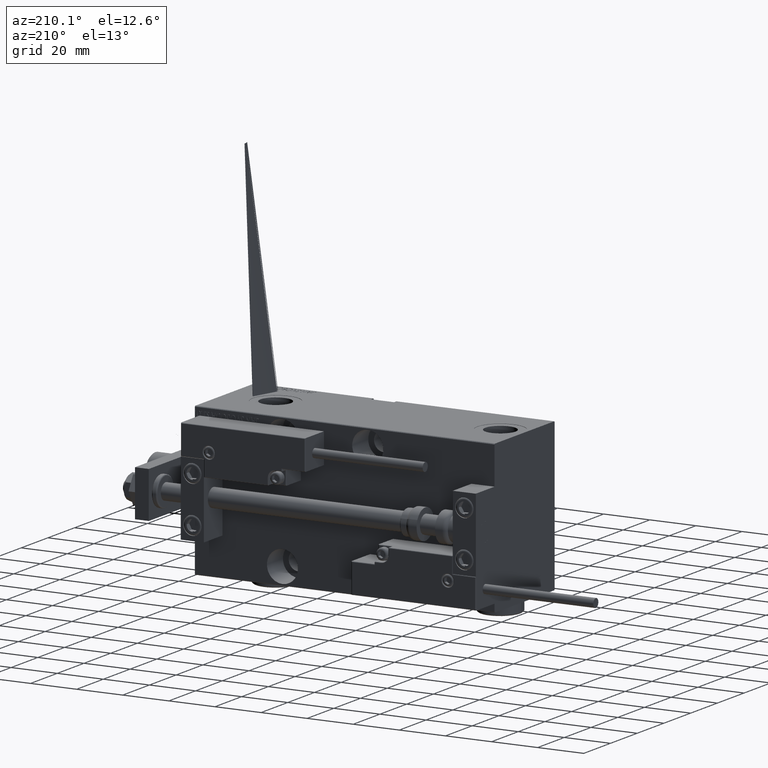
[diagram: clean part render]
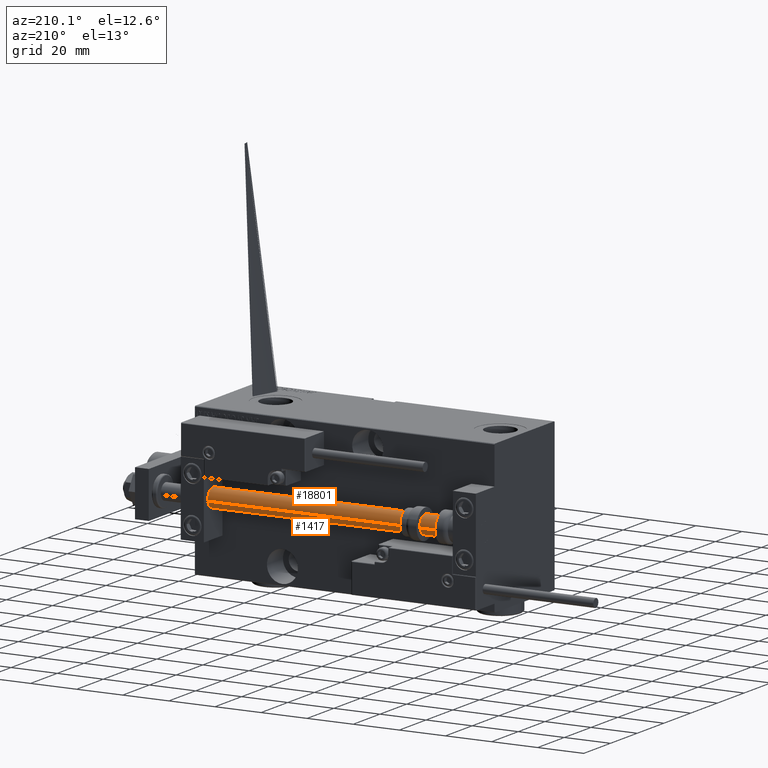
[diagram: same view with one multi-face feature highlighted, each face labeled with its STEP entity id]
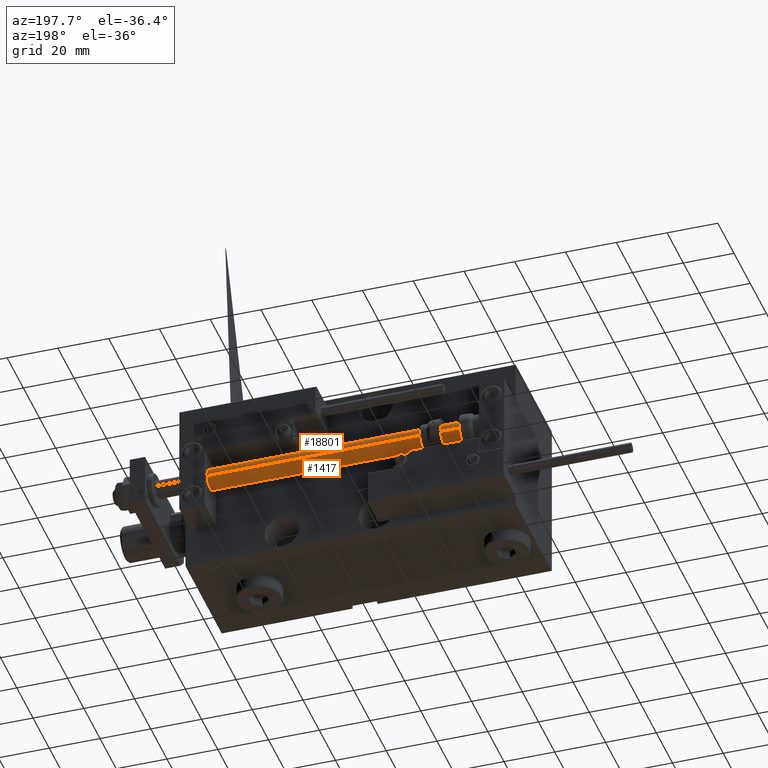
[diagram: same view with one multi-face feature highlighted, each face labeled with its STEP entity id]
A machine part, auxiliary view. The highlighted faces form ONE feature: a constant-radius fillet chain: 2 tangent blend faces with common blend radius 4 mm. The faces share edges in the B-rep.
A second angle (auxiliary view) of the same feature is appended — it is thin or edge-on in the first view.
Their STEP definitions:
[1] entity #18801 (Cylinder):
#2389 = EDGE_LOOP ( 'NONE', ( #43003, #35671, #18217, #14652 ) ) ;
#3469 = DIRECTION ( 'NONE',  ( -0.000000000000000000, -0.000000000000000000, -1.000000000000000000 ) ) ;
#3711 = DIRECTION ( 'NONE',  ( 1.000000000000000000, 0.000000000000000000, 0.000000000000000000 ) ) ;
#4170 = CARTESIAN_POINT ( 'NONE',  ( 4.000000000000000000, 4.898587196589412829E-16, 130.0000000000000000 ) ) ;
#7261 = VERTEX_POINT ( 'NONE', #17367 ) ;
#11428 = LINE ( 'NONE', #30423, #27233 ) ;
#12324 = CIRCLE ( 'NONE', #43874, 4.000000000000000000 ) ;
#13155 = VERTEX_POINT ( 'NONE', #32931 ) ;
#13762 = VERTEX_POINT ( 'NONE', #23742 ) ;
#14652 = ORIENTED_EDGE ( 'NONE', *, *, #21454, .T. ) ;
#15686 = CYLINDRICAL_SURFACE ( 'NONE', #18889, 4.000000000000000000 ) ;
#17367 = CARTESIAN_POINT ( 'NONE',  ( 4.000000000000000000, 4.898587196589412829E-16, 2.000000000000029310 ) ) ;
#18217 = ORIENTED_EDGE ( 'NONE', *, *, #22934, .T. ) ;
#18801 = ADVANCED_FACE ( 'NONE', ( #49209 ), #15686, .T. ) ;
#18827 = CARTESIAN_POINT ( 'NONE',  ( 0.000000000000000000, 0.000000000000000000, 130.0000000000000000 ) ) ;
#18889 = AXIS2_PLACEMENT_3D ( 'NONE', #18827, #3469, #23750 ) ;
#19756 = CARTESIAN_POINT ( 'NONE',  ( 0.000000000000000000, 0.000000000000000000, 130.0000000000000000 ) ) ;
#19878 = EDGE_CURVE ( 'NONE', #35982, #7261, #11428, .T. ) ;
#20025 = AXIS2_PLACEMENT_3D ( 'NONE', #19756, #38733, #50396 ) ;
#21454 = EDGE_CURVE ( 'NONE', #13762, #7261, #12324, .T. ) ;
#22934 = EDGE_CURVE ( 'NONE', #13155, #13762, #45111, .T. ) ;
#23742 = CARTESIAN_POINT ( 'NONE',  ( -4.000000000000000000, 0.000000000000000000, 2.000000000000029310 ) ) ;
#23750 = DIRECTION ( 'NONE',  ( -1.000000000000000000, 0.000000000000000000, 0.000000000000000000 ) ) ;
#25711 = VECTOR ( 'NONE', #48504, 1000.000000000000000 ) ;
#27233 = VECTOR ( 'NONE', #43131, 1000.000000000000000 ) ;
#30423 = CARTESIAN_POINT ( 'NONE',  ( 4.000000000000000000, 4.898587196589412829E-16, 130.0000000000000000 ) ) ;
#30734 = EDGE_CURVE ( 'NONE', #13155, #35982, #42408, .T. ) ;
#31776 = CARTESIAN_POINT ( 'NONE',  ( 0.000000000000000000, 0.000000000000000000, 2.000000000000029310 ) ) ;
#32931 = CARTESIAN_POINT ( 'NONE',  ( -4.000000000000000000, 0.000000000000000000, 130.0000000000000000 ) ) ;
#35671 = ORIENTED_EDGE ( 'NONE', *, *, #30734, .F. ) ;
#35982 = VERTEX_POINT ( 'NONE', #4170 ) ;
#38733 = DIRECTION ( 'NONE',  ( 0.000000000000000000, 0.000000000000000000, 1.000000000000000000 ) ) ;
#42408 = CIRCLE ( 'NONE', #20025, 4.000000000000000000 ) ;
#43003 = ORIENTED_EDGE ( 'NONE', *, *, #19878, .F. ) ;
#43131 = DIRECTION ( 'NONE',  ( -0.000000000000000000, -0.000000000000000000, -1.000000000000000000 ) ) ;
#43874 = AXIS2_PLACEMENT_3D ( 'NONE', #31776, #47873, #3711 ) ;
#44860 = CARTESIAN_POINT ( 'NONE',  ( -4.000000000000000000, 0.000000000000000000, 130.0000000000000000 ) ) ;
#45111 = LINE ( 'NONE', #44860, #25711 ) ;
#47873 = DIRECTION ( 'NONE',  ( -0.000000000000000000, -0.000000000000000000, 1.000000000000000000 ) ) ;
#48504 = DIRECTION ( 'NONE',  ( -0.000000000000000000, -0.000000000000000000, -1.000000000000000000 ) ) ;
#49209 = FACE_OUTER_BOUND ( 'NONE', #2389, .T. ) ;
#50396 = DIRECTION ( 'NONE',  ( 1.000000000000000000, 0.000000000000000000, 0.000000000000000000 ) ) ;
[2] entity #1417 (Cylinder):
#1417 = ADVANCED_FACE ( 'NONE', ( #29431 ), #45267, .T. ) ;
#3598 = EDGE_CURVE ( 'NONE', #7261, #13762, #20318, .T. ) ;
#4170 = CARTESIAN_POINT ( 'NONE',  ( 4.000000000000000000, 4.898587196589412829E-16, 130.0000000000000000 ) ) ;
#4976 = ORIENTED_EDGE ( 'NONE', *, *, #19878, .T. ) ;
#6274 = CARTESIAN_POINT ( 'NONE',  ( 0.000000000000000000, 0.000000000000000000, 130.0000000000000000 ) ) ;
#7261 = VERTEX_POINT ( 'NONE', #17367 ) ;
#11428 = LINE ( 'NONE', #30423, #27233 ) ;
#11476 = CARTESIAN_POINT ( 'NONE',  ( 0.000000000000000000, 0.000000000000000000, 2.000000000000029310 ) ) ;
#11479 = ORIENTED_EDGE ( 'NONE', *, *, #22934, .F. ) ;
#13155 = VERTEX_POINT ( 'NONE', #32931 ) ;
#13717 = DIRECTION ( 'NONE',  ( 1.000000000000000000, 0.000000000000000000, 0.000000000000000000 ) ) ;
#13762 = VERTEX_POINT ( 'NONE', #23742 ) ;
#16415 = EDGE_CURVE ( 'NONE', #35982, #13155, #49451, .T. ) ;
#17367 = CARTESIAN_POINT ( 'NONE',  ( 4.000000000000000000, 4.898587196589412829E-16, 2.000000000000029310 ) ) ;
#17880 = DIRECTION ( 'NONE',  ( 0.000000000000000000, 0.000000000000000000, 1.000000000000000000 ) ) ;
#18638 = EDGE_LOOP ( 'NONE', ( #28198, #4976, #25322, #11479 ) ) ;
#18785 = DIRECTION ( 'NONE',  ( 1.000000000000000000, 0.000000000000000000, 0.000000000000000000 ) ) ;
#19878 = EDGE_CURVE ( 'NONE', #35982, #7261, #11428, .T. ) ;
#20318 = CIRCLE ( 'NONE', #31107, 4.000000000000000000 ) ;
#22156 = DIRECTION ( 'NONE',  ( -0.000000000000000000, -0.000000000000000000, -1.000000000000000000 ) ) ;
#22934 = EDGE_CURVE ( 'NONE', #13155, #13762, #45111, .T. ) ;
#22939 = AXIS2_PLACEMENT_3D ( 'NONE', #25941, #17880, #13717 ) ;
#23742 = CARTESIAN_POINT ( 'NONE',  ( -4.000000000000000000, 0.000000000000000000, 2.000000000000029310 ) ) ;
#25322 = ORIENTED_EDGE ( 'NONE', *, *, #3598, .T. ) ;
#25711 = VECTOR ( 'NONE', #48504, 1000.000000000000000 ) ;
#25941 = CARTESIAN_POINT ( 'NONE',  ( 0.000000000000000000, 0.000000000000000000, 130.0000000000000000 ) ) ;
#27233 = VECTOR ( 'NONE', #43131, 1000.000000000000000 ) ;
#27358 = DIRECTION ( 'NONE',  ( -0.000000000000000000, -0.000000000000000000, 1.000000000000000000 ) ) ;
#28198 = ORIENTED_EDGE ( 'NONE', *, *, #16415, .F. ) ;
#29431 = FACE_OUTER_BOUND ( 'NONE', #18638, .T. ) ;
#30423 = CARTESIAN_POINT ( 'NONE',  ( 4.000000000000000000, 4.898587196589412829E-16, 130.0000000000000000 ) ) ;
#31107 = AXIS2_PLACEMENT_3D ( 'NONE', #11476, #27358, #18785 ) ;
#32931 = CARTESIAN_POINT ( 'NONE',  ( -4.000000000000000000, 0.000000000000000000, 130.0000000000000000 ) ) ;
#35982 = VERTEX_POINT ( 'NONE', #4170 ) ;
#39339 = AXIS2_PLACEMENT_3D ( 'NONE', #6274, #22156, #46038 ) ;
#43131 = DIRECTION ( 'NONE',  ( -0.000000000000000000, -0.000000000000000000, -1.000000000000000000 ) ) ;
#44860 = CARTESIAN_POINT ( 'NONE',  ( -4.000000000000000000, 0.000000000000000000, 130.0000000000000000 ) ) ;
#45111 = LINE ( 'NONE', #44860, #25711 ) ;
#45267 = CYLINDRICAL_SURFACE ( 'NONE', #39339, 4.000000000000000000 ) ;
#46038 = DIRECTION ( 'NONE',  ( -1.000000000000000000, 0.000000000000000000, 0.000000000000000000 ) ) ;
#48504 = DIRECTION ( 'NONE',  ( -0.000000000000000000, -0.000000000000000000, -1.000000000000000000 ) ) ;
#49451 = CIRCLE ( 'NONE', #22939, 4.000000000000000000 ) ;